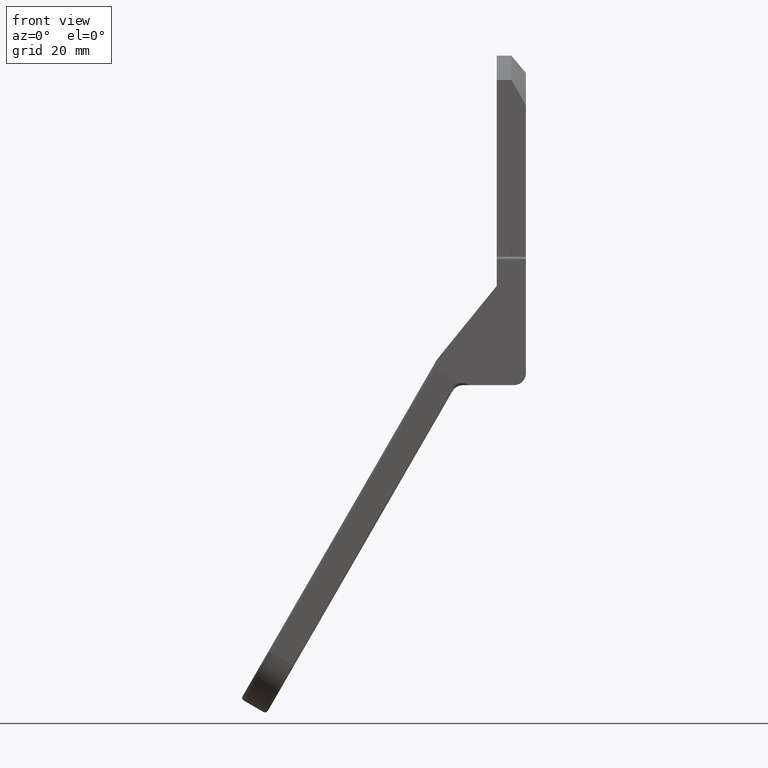
[diagram: clean part render]
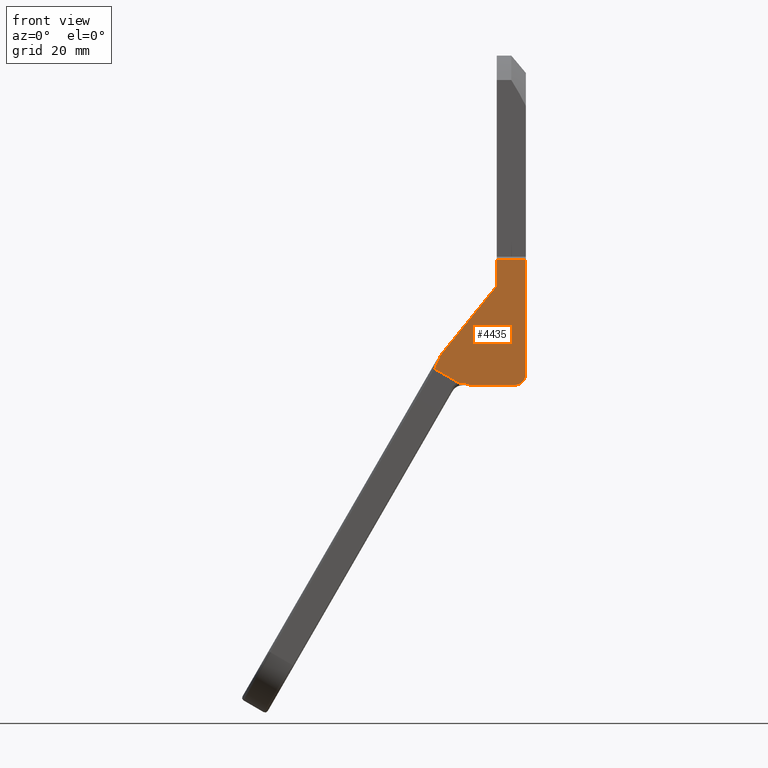
[diagram: same view with one face highlighted and labeled with its STEP entity id]
A machine part, front view. The second image highlights one B-rep face of the part: STEP entity #4435.
In plain terms, the highlighted face is a freeform B-spline surface patch.
Its self-contained STEP definition (entity closure, byte-faithful):
#365=CARTESIAN_POINT('',(-11.466508835051799,-13.0,-39.625848046374600));
#366=VERTEX_POINT('',#365);
#406=CARTESIAN_POINT('',(-9.703860799435830,-13.0,-40.0));
#407=VERTEX_POINT('',#406);
#423=CARTESIAN_POINT('',(-11.466508835051799,-13.0,-39.625848046374600));
#424=CARTESIAN_POINT('',(-11.447678626585621,-13.0,-39.628439738232849));
#425=CARTESIAN_POINT('',(-11.428742648519369,-13.0,-39.629726318730413));
#426=CARTESIAN_POINT('',(-11.390810483249100,-13.0,-39.631556547638240));
#427=CARTESIAN_POINT('',(-11.371808613074180,-13.0,-39.632030072781937));
#428=CARTESIAN_POINT('',(-11.314764912771871,-13.0,-39.632980651149779));
#429=CARTESIAN_POINT('',(-11.276686282004830,-13.0,-39.633003614230169));
#430=CARTESIAN_POINT('',(-11.162491769419560,-13.0,-39.633583095713561));
#431=CARTESIAN_POINT('',(-11.086415445978140,-13.0,-39.634627732507603));
#432=CARTESIAN_POINT('',(-10.858750102026841,-13.0,-39.644716336696519));
#433=CARTESIAN_POINT('',(-10.707706892987989,-13.0,-39.660495176410393));
#434=CARTESIAN_POINT('',(-10.482635273106681,-13.0,-39.702588238857977));
#435=CARTESIAN_POINT('',(-10.407755364351811,-13.0,-39.719683436852819));
#436=CARTESIAN_POINT('',(-10.260809008741210,-13.0,-39.759671190960837));
#437=CARTESIAN_POINT('',(-10.188462479777851,-13.0,-39.782601700017132));
#438=CARTESIAN_POINT('',(-9.974838954959978,-13.0,-39.860297259063032));
#439=CARTESIAN_POINT('',(-9.836960003627057,-13.0,-39.923919377838402));
#440=CARTESIAN_POINT('',(-9.703860799435830,-13.0,-40.0));
#441=B_SPLINE_CURVE_WITH_KNOTS('',3,(#423,#424,#425,#426,#427,#428,#429,#430,#431,#432,#433,#434,#435,#436,#437,#438,#439,#440),.UNSPECIFIED.,.F.,.U.,(4,2,2,2,2,2,2,2,4),(0.0,0.031250000000001,0.062500000000001,0.125000000000000,0.250000000000000,0.499999999999999,0.624999999999999,0.750000000000000,1.0),.UNSPECIFIED.);
#442=EDGE_CURVE('',#366,#407,#441,.T.);
#1051=CARTESIAN_POINT('',(-15.624955967157801,-13.0,-37.224967431024702));
#1052=VERTEX_POINT('',#1051);
#1066=CARTESIAN_POINT('',(-14.613962013963400,-13.0,-34.836008295062150));
#1067=VERTEX_POINT('',#1066);
#1068=CARTESIAN_POINT('',(-14.613962013963411,-13.0,-34.836008295062172));
#1069=CARTESIAN_POINT('',(-15.692558979956214,-13.000000000000005,-36.971940554604402));
#1070=CARTESIAN_POINT('',(-15.624955967157780,-13.0,-37.224967431024723));
#1078=(BOUNDED_CURVE()B_SPLINE_CURVE(2,(#1068,#1069,#1070),.UNSPECIFIED.,.F.,.U.)CURVE()GEOMETRIC_REPRESENTATION_ITEM()QUASI_UNIFORM_CURVE()RATIONAL_B_SPLINE_CURVE((1.0,0.937662605747771,1.0))REPRESENTATION_ITEM(''));
#1079=EDGE_CURVE('',#1067,#1052,#1078,.T.);
#1117=CARTESIAN_POINT('',(-15.624955967157801,-13.0,-37.224967431024702));
#1118=CARTESIAN_POINT('',(-11.466508835051799,-13.0,-39.625848046374600));
#1119=QUASI_UNIFORM_CURVE('',1,(#1117,#1118),.UNSPECIFIED.,.F.,.U.);
#1120=EDGE_CURVE('',#1052,#366,#1119,.T.);
#1142=CARTESIAN_POINT('',(0.0,-13.0,-18.500000000000000));
#1143=VERTEX_POINT('',#1142);
#1164=CARTESIAN_POINT('',(-5.000000000000091,-13.0,-18.500000000000000));
#1165=VERTEX_POINT('',#1164);
#1179=CARTESIAN_POINT('',(0.0,-13.0,-18.500000000000000));
#1180=CARTESIAN_POINT('',(-5.000000000000091,-13.0,-18.500000000000000));
#1181=QUASI_UNIFORM_CURVE('',1,(#1179,#1180),.UNSPECIFIED.,.F.,.U.);
#1182=EDGE_CURVE('',#1143,#1165,#1181,.T.);
#4225=CARTESIAN_POINT('',(-5.000000000000091,-13.0,-23.0));
#4226=VERTEX_POINT('',#4225);
#4227=CARTESIAN_POINT('',(-14.613962013963400,-13.0,-34.836008295062150));
#4228=CARTESIAN_POINT('',(-5.000000000000091,-13.0,-23.0));
#4229=QUASI_UNIFORM_CURVE('',1,(#4227,#4228),.UNSPECIFIED.,.F.,.U.);
#4230=EDGE_CURVE('',#1067,#4226,#4229,.T.);
#4302=CARTESIAN_POINT('',(-2.000000000000085,-13.0,-40.0));
#4303=VERTEX_POINT('',#4302);
#4304=CARTESIAN_POINT('',(-2.000000000000085,-13.0,-40.0));
#4305=CARTESIAN_POINT('',(-9.703860799435830,-13.0,-40.0));
#4306=QUASI_UNIFORM_CURVE('',1,(#4304,#4305),.UNSPECIFIED.,.F.,.U.);
#4307=EDGE_CURVE('',#4303,#407,#4306,.T.);
#4356=CARTESIAN_POINT('',(0.0,-13.0,-38.0));
#4357=VERTEX_POINT('',#4356);
#4363=CARTESIAN_POINT('',(-2.000000000000085,-13.0,-40.0));
#4364=CARTESIAN_POINT('',(-8.500145E-014,-13.000000000000002,-39.999999999999993));
#4365=CARTESIAN_POINT('',(-8.500145E-014,-13.0,-38.0));
#4373=(BOUNDED_CURVE()B_SPLINE_CURVE(2,(#4363,#4364,#4365),.UNSPECIFIED.,.F.,.U.)CURVE()GEOMETRIC_REPRESENTATION_ITEM()QUASI_UNIFORM_CURVE()RATIONAL_B_SPLINE_CURVE((1.0,0.707106781186548,1.0))REPRESENTATION_ITEM(''));
#4374=EDGE_CURVE('',#4303,#4357,#4373,.T.);
#4411=CARTESIAN_POINT('',(-16.405422780784949,-13.0,-17.426075041671169));
#4412=CARTESIAN_POINT('',(0.780466953325142,-13.0,-17.426075041671169));
#4413=CARTESIAN_POINT('',(-16.405422780784949,-13.0,-41.073925535003767));
#4414=CARTESIAN_POINT('',(0.780466953325142,-13.0,-41.073925535003767));
#4415=B_SPLINE_SURFACE_WITH_KNOTS('',1,1,((#4411,#4413),(#4412,#4414)),.UNSPECIFIED.,.F.,.F.,.U.,(2,2),(2,2),(0.0,17.185889734110091),(0.0,23.647850493332591),.UNSPECIFIED.);
#4416=ORIENTED_EDGE('',*,*,#1120,.T.);
#4417=ORIENTED_EDGE('',*,*,#442,.T.);
#4418=ORIENTED_EDGE('',*,*,#4307,.F.);
#4419=ORIENTED_EDGE('',*,*,#4374,.T.);
#4420=CARTESIAN_POINT('',(0.0,-13.0,-18.500000000000000));
#4421=CARTESIAN_POINT('',(0.0,-13.0,-38.0));
#4422=QUASI_UNIFORM_CURVE('',1,(#4420,#4421),.UNSPECIFIED.,.F.,.U.);
#4423=EDGE_CURVE('',#1143,#4357,#4422,.T.);
#4424=ORIENTED_EDGE('',*,*,#4423,.F.);
#4425=ORIENTED_EDGE('',*,*,#1182,.T.);
#4426=CARTESIAN_POINT('',(-5.000000000000091,-13.0,-23.0));
#4427=CARTESIAN_POINT('',(-5.000000000000091,-13.0,-18.500000000000000));
#4428=QUASI_UNIFORM_CURVE('',1,(#4426,#4427),.UNSPECIFIED.,.F.,.U.);
#4429=EDGE_CURVE('',#4226,#1165,#4428,.T.);
#4430=ORIENTED_EDGE('',*,*,#4429,.F.);
#4431=ORIENTED_EDGE('',*,*,#4230,.F.);
#4432=ORIENTED_EDGE('',*,*,#1079,.T.);
#4433=EDGE_LOOP('',(#4416,#4417,#4418,#4419,#4424,#4425,#4430,#4431,#4432));
#4434=FACE_OUTER_BOUND('',#4433,.T.);
#4435=ADVANCED_FACE('',(#4434),#4415,.F.);